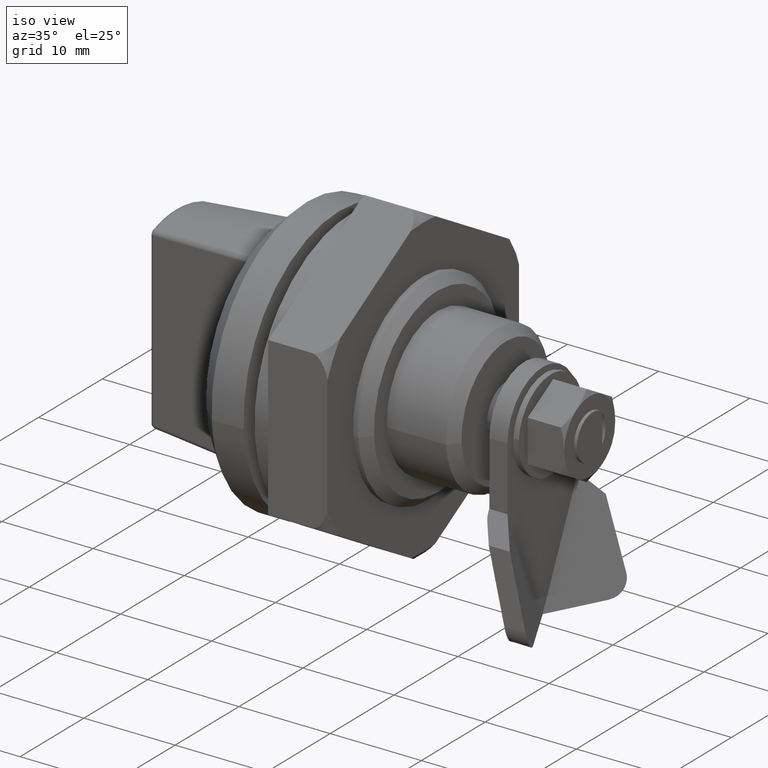
[diagram: clean part render]
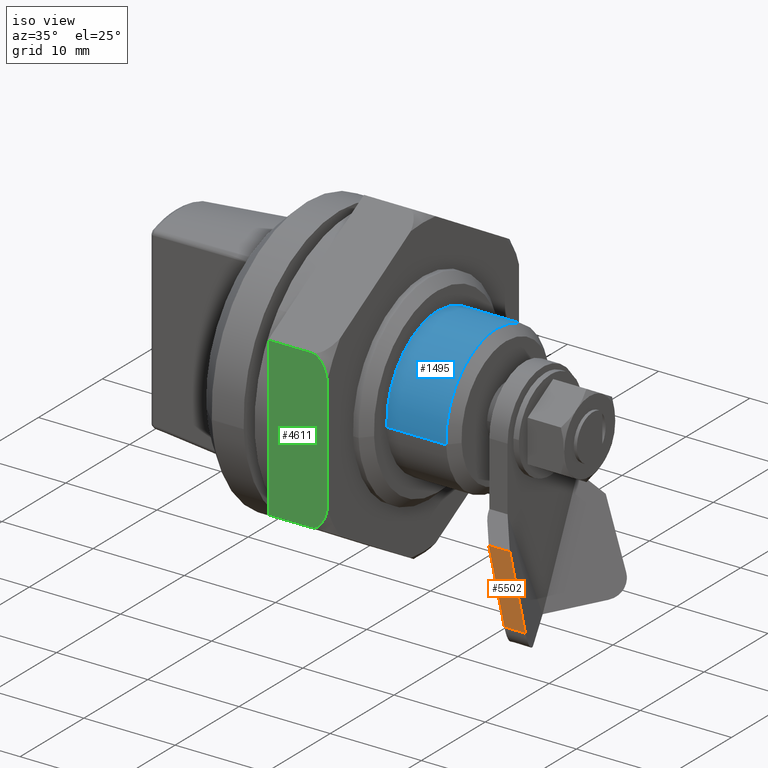
[diagram: same view with three faces highlighted in distinct colors, each labeled with its STEP entity id]
A machine part, iso view with three faces highlighted in distinct colors.
Their STEP definitions:

[orange] entity #5502 — the highlighted face is a freeform B-spline surface patch.
#5085=CARTESIAN_POINT('',(21.647984022657500,-7.512000000000028,-9.499999999999986));
#5086=VERTEX_POINT('',#5085);
#5108=CARTESIAN_POINT('',(23.626909158852850,-7.891992677597629,-16.897398436838429));
#5109=VERTEX_POINT('',#5108);
#5125=CARTESIAN_POINT('',(23.626909158852850,-7.891992677597629,-16.897398436838429));
#5126=CARTESIAN_POINT('',(21.647984022657500,-7.512000000000028,-9.499999999999986));
#5127=QUASI_UNIFORM_CURVE('',1,(#5125,#5126),.UNSPECIFIED.,.F.,.U.);
#5128=EDGE_CURVE('',#5109,#5086,#5127,.T.);
#5298=CARTESIAN_POINT('',(25.936310235611352,-7.891992677597630,-16.897398436838390));
#5299=VERTEX_POINT('',#5298);
#5317=CARTESIAN_POINT('',(23.626909158852850,-7.891992677597629,-16.897398436838429));
#5318=CARTESIAN_POINT('',(25.936310235611352,-7.891992677597630,-16.897398436838390));
#5319=QUASI_UNIFORM_CURVE('',1,(#5317,#5318),.UNSPECIFIED.,.F.,.U.);
#5320=EDGE_CURVE('',#5109,#5299,#5319,.T.);
#5373=CARTESIAN_POINT('',(23.957385099416101,-7.512000000000029,-9.499999999999986));
#5374=VERTEX_POINT('',#5373);
#5375=CARTESIAN_POINT('',(23.957385099416101,-7.512000000000029,-9.499999999999986));
#5376=CARTESIAN_POINT('',(21.647984022657500,-7.512000000000028,-9.499999999999986));
#5377=QUASI_UNIFORM_CURVE('',1,(#5375,#5376),.UNSPECIFIED.,.F.,.U.);
#5378=EDGE_CURVE('',#5374,#5086,#5377,.T.);
#5487=CARTESIAN_POINT('',(21.433782136632061,-7.910973311107125,-17.266898474420920));
#5488=CARTESIAN_POINT('',(21.433782136632061,-7.493019356298331,-9.130499764003810));
#5489=CARTESIAN_POINT('',(26.150512236658660,-7.910973311107126,-17.266898474420920));
#5490=CARTESIAN_POINT('',(26.150512236658660,-7.493019356298332,-9.130499764003810));
#5491=B_SPLINE_SURFACE_WITH_KNOTS('',1,1,((#5487,#5489),(#5488,#5490)),.UNSPECIFIED.,.F.,.F.,.U.,(2,2),(2,2),(0.0,8.147126455580368),(0.0,4.716730100026599),.UNSPECIFIED.);
#5492=ORIENTED_EDGE('',*,*,#5128,.F.);
#5493=ORIENTED_EDGE('',*,*,#5320,.T.);
#5494=CARTESIAN_POINT('',(25.936310235611352,-7.891992677597630,-16.897398436838390));
#5495=CARTESIAN_POINT('',(23.957385099416101,-7.512000000000029,-9.499999999999986));
#5496=QUASI_UNIFORM_CURVE('',1,(#5494,#5495),.UNSPECIFIED.,.F.,.U.);
#5497=EDGE_CURVE('',#5299,#5374,#5496,.T.);
#5498=ORIENTED_EDGE('',*,*,#5497,.T.);
#5499=ORIENTED_EDGE('',*,*,#5378,.T.);
#5500=EDGE_LOOP('',(#5492,#5493,#5498,#5499));
#5501=FACE_OUTER_BOUND('',#5500,.T.);
#5502=ADVANCED_FACE('',(#5501),#5491,.F.);

[blue] entity #1495 — the highlighted face is a freeform B-spline surface patch.
#1397=CARTESIAN_POINT('',(17.462500000000009,-7.985078387374934,-0.488388316278856));
#1398=CARTESIAN_POINT('',(17.462500000000006,-8.473466703653790,7.496690071096078));
#1399=CARTESIAN_POINT('',(17.462500000000009,-0.488388316278856,7.985078387374934));
#1400=CARTESIAN_POINT('',(17.462500000000006,7.496690071096078,8.473466703653790));
#1401=CARTESIAN_POINT('',(17.462500000000009,7.985078387374934,0.488388316278856));
#1402=CARTESIAN_POINT('',(10.633437499999999,-7.985078387374934,-0.488388316278856));
#1403=CARTESIAN_POINT('',(10.633437499999999,-8.473466703653790,7.496690071096078));
#1404=CARTESIAN_POINT('',(10.633437499999999,-0.488388316278856,7.985078387374934));
#1405=CARTESIAN_POINT('',(10.633437499999999,7.496690071096078,8.473466703653790));
#1406=CARTESIAN_POINT('',(10.633437499999999,7.985078387374934,0.488388316278856));
#1414=(BOUNDED_SURFACE()B_SPLINE_SURFACE(2,1,((#1397,#1402),(#1398,#1403),(#1399,#1404),(#1400,#1405),(#1401,#1406)),.UNSPECIFIED.,.F.,.F.,.U.)B_SPLINE_SURFACE_WITH_KNOTS((3,2,3),(2,2),(0.0,13.254833995939039,26.509667991878072),(0.0,6.829062500000006),.UNSPECIFIED.)GEOMETRIC_REPRESENTATION_ITEM()RATIONAL_B_SPLINE_SURFACE(((1.0,1.0),(0.707106781186548,0.707106781186548),(1.0,1.0),(0.707106781186548,0.707106781186548),(1.0,1.0)))REPRESENTATION_ITEM('')SURFACE());
#1415=CARTESIAN_POINT('',(17.300000000000001,0.0,8.0));
#1416=VERTEX_POINT('',#1415);
#1417=CARTESIAN_POINT('',(17.300000008078829,7.985078607682225,0.488384581894099));
#1418=VERTEX_POINT('',#1417);
#1419=CARTESIAN_POINT('',(17.300000000000001,0.0,8.0));
#1420=CARTESIAN_POINT('',(17.300000004039411,7.525655468297489,8.000001866699069));
#1421=CARTESIAN_POINT('',(17.300000008078836,7.985078607682225,0.488384581894099));
#1429=(BOUNDED_CURVE()B_SPLINE_CURVE(2,(#1419,#1420,#1421),.UNSPECIFIED.,.F.,.U.)B_SPLINE_CURVE_WITH_KNOTS((3,3),(0.0,0.239333123610723),.UNSPECIFIED.)CURVE()GEOMETRIC_REPRESENTATION_ITEM()RATIONAL_B_SPLINE_CURVE((1.0,0.719603804227909,0.976072387517405))REPRESENTATION_ITEM(''));
#1430=EDGE_CURVE('',#1416,#1418,#1429,.T.);
#1431=ORIENTED_EDGE('',*,*,#1430,.T.);
#1432=CARTESIAN_POINT('',(10.800000000000001,7.985078838620413,0.488380938368633));
#1433=VERTEX_POINT('',#1432);
#1434=CARTESIAN_POINT('',(17.300000008078829,7.985078607682225,0.488384581894099));
#1435=CARTESIAN_POINT('',(10.800000000000001,7.985078838620413,0.488380938368633));
#1436=QUASI_UNIFORM_CURVE('',1,(#1434,#1435),.UNSPECIFIED.,.F.,.U.);
#1437=EDGE_CURVE('',#1418,#1433,#1436,.T.);
#1438=ORIENTED_EDGE('',*,*,#1437,.T.);
#1439=CARTESIAN_POINT('',(10.800000000000001,0.0,8.0));
#1440=VERTEX_POINT('',#1439);
#1441=CARTESIAN_POINT('',(10.800000000000001,0.0,8.0));
#1442=CARTESIAN_POINT('',(10.800000000000001,7.525655501654670,7.999999999999896));
#1443=CARTESIAN_POINT('',(10.800000000000006,7.985078838620413,0.488380938368633));
#1451=(BOUNDED_CURVE()B_SPLINE_CURVE(2,(#1441,#1442,#1443),.UNSPECIFIED.,.F.,.U.)B_SPLINE_CURVE_WITH_KNOTS((3,3),(0.0,0.239333121668691),.UNSPECIFIED.)CURVE()GEOMETRIC_REPRESENTATION_ITEM()RATIONAL_B_SPLINE_CURVE((1.0,0.719603806503142,0.976072383355254))REPRESENTATION_ITEM(''));
#1452=EDGE_CURVE('',#1440,#1433,#1451,.T.);
#1453=ORIENTED_EDGE('',*,*,#1452,.F.);
#1454=CARTESIAN_POINT('',(10.800000000000001,-7.985078838620413,-0.488380938368633));
#1455=VERTEX_POINT('',#1454);
#1456=CARTESIAN_POINT('',(10.800000000000004,-7.985078838620413,-0.488380938368633));
#1457=CARTESIAN_POINT('',(10.800000000000001,-7.999999999996639,-0.244418407090186));
#1458=CARTESIAN_POINT('',(10.800000000000001,-7.999999999996692,1.998946E-013));
#1459=CARTESIAN_POINT('',(10.800000000000001,-7.999999999998396,8.000000000000096));
#1460=CARTESIAN_POINT('',(10.800000000000001,0.0,8.0));
#1468=(BOUNDED_CURVE()B_SPLINE_CURVE(2,(#1456,#1457,#1458,#1459,#1460),.UNSPECIFIED.,.F.,.U.)B_SPLINE_CURVE_WITH_KNOTS((3,2,3),(0.739333121668691,0.750000000000000,1.0),.UNSPECIFIED.)CURVE()GEOMETRIC_REPRESENTATION_ITEM()RATIONAL_B_SPLINE_CURVE((0.976072383355254,0.987502974683406,1.0,0.707106781186548,1.0))REPRESENTATION_ITEM(''));
#1469=EDGE_CURVE('',#1455,#1440,#1468,.T.);
#1470=ORIENTED_EDGE('',*,*,#1469,.F.);
#1471=CARTESIAN_POINT('',(17.300000008078829,-7.985078607682226,-0.488384581894099));
#1472=VERTEX_POINT('',#1471);
#1473=CARTESIAN_POINT('',(17.300000008078829,-7.985078607682226,-0.488384581894099));
#1474=CARTESIAN_POINT('',(10.800000000000001,-7.985078838620413,-0.488380938368633));
#1475=QUASI_UNIFORM_CURVE('',1,(#1473,#1474),.UNSPECIFIED.,.F.,.U.);
#1476=EDGE_CURVE('',#1472,#1455,#1475,.T.);
#1477=ORIENTED_EDGE('',*,*,#1476,.F.);
#1478=CARTESIAN_POINT('',(17.300000008078825,-7.985078607682226,-0.488384581894099));
#1479=CARTESIAN_POINT('',(17.300000007962733,-7.999999766959335,-0.244422041775751));
#1480=CARTESIAN_POINT('',(17.300000007839319,-7.999999770571203,-0.000003622715853));
#1481=CARTESIAN_POINT('',(17.300000003799902,-7.999999888790391,7.999998243983217));
#1482=CARTESIAN_POINT('',(17.300000000000001,0.0,8.0));
#1490=(BOUNDED_CURVE()B_SPLINE_CURVE(2,(#1478,#1479,#1480,#1481,#1482),.UNSPECIFIED.,.F.,.U.)B_SPLINE_CURVE_WITH_KNOTS((3,2,3),(0.739333123610723,0.750000000000000,1.0),.UNSPECIFIED.)CURVE()GEOMETRIC_REPRESENTATION_ITEM()RATIONAL_B_SPLINE_CURVE((0.976072387517405,0.987502976958638,1.0,0.707106781186548,1.0))REPRESENTATION_ITEM(''));
#1491=EDGE_CURVE('',#1472,#1416,#1490,.T.);
#1492=ORIENTED_EDGE('',*,*,#1491,.T.);
#1493=EDGE_LOOP('',(#1431,#1438,#1453,#1470,#1477,#1492));
#1494=FACE_OUTER_BOUND('',#1493,.T.);
#1495=ADVANCED_FACE('',(#1494),#1414,.T.);

[green] entity #4611 — the highlighted face is a freeform B-spline surface patch.
#3907=CARTESIAN_POINT('',(9.199999999999999,-15.0,6.431095073919311));
#3908=VERTEX_POINT('',#3907);
#3922=CARTESIAN_POINT('',(9.199999999999999,-15.0,-6.431095073919311));
#3923=VERTEX_POINT('',#3922);
#3924=CARTESIAN_POINT('',(9.199999999999999,-15.0,-6.431095073919311));
#3925=CARTESIAN_POINT('',(9.199999999999999,-15.0,6.431095073919311));
#3926=QUASI_UNIFORM_CURVE('',1,(#3924,#3925),.UNSPECIFIED.,.F.,.U.);
#3927=EDGE_CURVE('',#3923,#3908,#3926,.T.);
#4117=CARTESIAN_POINT('',(7.468242629463000,-15.0,-8.660999999999820));
#4118=VERTEX_POINT('',#4117);
#4124=CARTESIAN_POINT('',(2.700000000000035,-15.0,-8.660999999999820));
#4125=VERTEX_POINT('',#4124);
#4126=CARTESIAN_POINT('',(7.468242629463000,-15.0,-8.660999999999820));
#4127=CARTESIAN_POINT('',(2.700000000000035,-15.0,-8.660999999999820));
#4128=QUASI_UNIFORM_CURVE('',1,(#4126,#4127),.UNSPECIFIED.,.F.,.U.);
#4129=EDGE_CURVE('',#4118,#4125,#4128,.T.);
#4375=CARTESIAN_POINT('',(2.700000000000035,-15.0,8.660000000000000));
#4376=VERTEX_POINT('',#4375);
#4382=CARTESIAN_POINT('',(7.468242629463000,-15.0,8.660000000000000));
#4383=VERTEX_POINT('',#4382);
#4384=CARTESIAN_POINT('',(7.468242629463000,-15.0,8.660000000000000));
#4385=CARTESIAN_POINT('',(2.700000000000035,-15.0,8.660000000000000));
#4386=QUASI_UNIFORM_CURVE('',1,(#4384,#4385),.UNSPECIFIED.,.F.,.U.);
#4387=EDGE_CURVE('',#4383,#4376,#4386,.T.);
#4465=CARTESIAN_POINT('',(7.468242629463080,-15.0,-8.659237841749471));
#4466=VERTEX_POINT('',#4465);
#4467=CARTESIAN_POINT('',(9.199999999999999,-15.0,-6.431095073919311));
#4468=CARTESIAN_POINT('',(9.142026569019984,-15.0,-6.685745043623697));
#4469=CARTESIAN_POINT('',(9.070839630466073,-15.0,-6.936322689835604));
#4470=CARTESIAN_POINT('',(8.933640893490269,-15.0,-7.302814413221252));
#4471=CARTESIAN_POINT('',(8.882549240607906,-15.0,-7.423775414617201));
#4472=CARTESIAN_POINT('',(8.768932782492975,-14.999999999999989,-7.657574436413237));
#4473=CARTESIAN_POINT('',(8.706332607657480,-15.0,-7.770810848664722));
#4474=CARTESIAN_POINT('',(8.566087169940783,-15.0,-7.987768452589116));
#4475=CARTESIAN_POINT('',(8.488538847763639,-15.0,-8.091550954118061));
#4476=CARTESIAN_POINT('',(8.356158994964362,-15.0,-8.237069271457592));
#4477=CARTESIAN_POINT('',(8.309182435966392,-15.0,-8.283920311037301));
#4478=CARTESIAN_POINT('',(8.211024629625424,-15.0,-8.371113397878538));
#4479=CARTESIAN_POINT('',(8.159612408512894,-15.0,-8.411745743256130));
#4480=CARTESIAN_POINT('',(8.051241871706065,-15.0,-8.485964792091057));
#4481=CARTESIAN_POINT('',(7.993813759979943,-15.0,-8.519733933955969));
#4482=CARTESIAN_POINT('',(7.875881512607244,-15.0,-8.576879873363959));
#4483=CARTESIAN_POINT('',(7.815158433862671,-15.0,-8.600494556807931));
#4484=CARTESIAN_POINT('',(7.721124533757099,-15.0,-8.627593441155250));
#4485=CARTESIAN_POINT('',(7.689286895378426,-15.0,-8.635235097825952));
#4486=CARTESIAN_POINT('',(7.624550572235622,-15.0,-8.647524042193810));
#4487=CARTESIAN_POINT('',(7.591507880134528,-14.999999999999989,-8.652166991993044));
#4488=CARTESIAN_POINT('',(7.528490488808096,-15.0,-8.657876626014366));
#4489=CARTESIAN_POINT('',(7.498333356306489,-15.0,-8.659237495436564));
#4490=CARTESIAN_POINT('',(7.468242629463080,-15.0,-8.659237841749471));
#4491=B_SPLINE_CURVE_WITH_KNOTS('',3,(#4467,#4468,#4469,#4470,#4471,#4472,#4473,#4474,#4475,#4476,#4477,#4478,#4479,#4480,#4481,#4482,#4483,#4484,#4485,#4486,#4487,#4488,#4489,#4490),.UNSPECIFIED.,.F.,.U.,(4,2,2,2,2,2,2,2,2,2,2,4),(0.0,0.031250000000001,0.046875000000002,0.062500000000002,0.078125000000003,0.085937500000003,0.093750000000003,0.101562500000003,0.109375000000004,0.113281250000004,0.117187500000004,0.120787776723992),.UNSPECIFIED.);
#4492=EDGE_CURVE('',#3923,#4466,#4491,.T.);
#4527=CARTESIAN_POINT('',(7.468242629463080,-15.0,8.659237841749471));
#4528=VERTEX_POINT('',#4527);
#4529=CARTESIAN_POINT('',(7.468242629463080,-15.0,8.659237841749471));
#4530=CARTESIAN_POINT('',(7.493325388259478,-15.0,8.659238223446394));
#4531=CARTESIAN_POINT('',(7.518299320796952,-15.0,8.658294559079694));
#4532=CARTESIAN_POINT('',(7.608627134018750,-15.0,8.651519805038177));
#4533=CARTESIAN_POINT('',(7.673352836775162,-15.0,8.640240301492785));
#4534=CARTESIAN_POINT('',(7.769375475870972,-15.0,8.614075980367309));
#4535=CARTESIAN_POINT('',(7.801143151804281,-15.0,8.603808638875352));
#4536=CARTESIAN_POINT('',(7.863129900136790,-15.0,8.580732882113770));
#4537=CARTESIAN_POINT('',(7.923886410210399,-15.0,8.555036189770020));
#4538=CARTESIAN_POINT('',(7.982365995913002,-15.0,8.524488671126084));
#4539=CARTESIAN_POINT('',(8.039780268692105,-15.0,8.491671578660043));
#4540=CARTESIAN_POINT('',(8.068048720597032,-15.0,8.474062665003412));
#4541=CARTESIAN_POINT('',(8.205635673214154,-15.0,8.381508568871432));
#4542=CARTESIAN_POINT('',(8.303281636481042,-15.0,8.294007979802801));
#4543=CARTESIAN_POINT('',(8.436899441598856,-15.0,8.148836669267578));
#4544=CARTESIAN_POINT('',(8.479418398631564,-15.0,8.097829993422668));
#4545=CARTESIAN_POINT('',(8.559600734675424,-15.0,7.993014229698201));
#4546=CARTESIAN_POINT('',(8.597276876159866,-15.0,7.939246880140066));
#4547=CARTESIAN_POINT('',(8.704254629577431,-15.0,7.774538785327469));
#4548=CARTESIAN_POINT('',(8.767563867378266,-15.0,7.660224810450826));
#4549=CARTESIAN_POINT('',(8.853486416497329,-15.0,7.483664311687342));
#4550=CARTESIAN_POINT('',(8.880601892586292,-15.0,7.423952148178089));
#4551=CARTESIAN_POINT('',(8.932115201310369,-15.0,7.302998004229152));
#4552=CARTESIAN_POINT('',(8.956545852380504,-15.0,7.241651883013375));
#4553=CARTESIAN_POINT('',(9.071622344601106,-15.0,6.934147431016926));
#4554=CARTESIAN_POINT('',(9.142438841186117,-15.0,6.683934455532263));
#4555=CARTESIAN_POINT('',(9.200000000000076,-15.0,6.431095073919320));
#4556=B_SPLINE_CURVE_WITH_KNOTS('',3,(#4529,#4530,#4531,#4532,#4533,#4534,#4535,#4536,#4537,#4538,#4539,#4540,#4541,#4542,#4543,#4544,#4545,#4546,#4547,#4548,#4549,#4550,#4551,#4552,#4553,#4554,#4555),.UNSPECIFIED.,.F.,.U.,(4,2,2,2,1,2,2,2,2,2,2,2,2,4),(0.879844603749379,0.882812499999997,0.890624999999997,0.894531249999997,0.898437499999997,0.902343749999997,0.906249999999998,0.921874999999998,0.929687499999998,0.937499999999998,0.953124999999999,0.960937499999999,0.968749999999999,1.0),.UNSPECIFIED.);
#4557=EDGE_CURVE('',#4528,#3908,#4556,.T.);
#4577=CARTESIAN_POINT('',(2.375325012598261,-15.0,9.525183916428532));
#4578=CARTESIAN_POINT('',(2.375325012598261,-15.0,-9.526184381013774));
#4579=CARTESIAN_POINT('',(9.524675161745323,-15.0,9.525183916428532));
#4580=CARTESIAN_POINT('',(9.524675161745323,-15.0,-9.526184381013774));
#4581=B_SPLINE_SURFACE_WITH_KNOTS('',1,1,((#4577,#4579),(#4578,#4580)),.UNSPECIFIED.,.F.,.F.,.U.,(2,2),(2,2),(0.0,19.051368297442309),(0.0,7.149350149147062),.UNSPECIFIED.);
#4582=ORIENTED_EDGE('',*,*,#4557,.F.);
#4583=CARTESIAN_POINT('',(7.468242629463000,-15.0,8.660000000000000));
#4584=CARTESIAN_POINT('',(7.468242629463080,-15.0,8.659237841749471));
#4585=QUASI_UNIFORM_CURVE('',1,(#4583,#4584),.UNSPECIFIED.,.F.,.U.);
#4586=EDGE_CURVE('',#4383,#4528,#4585,.T.);
#4587=ORIENTED_EDGE('',*,*,#4586,.F.);
#4588=ORIENTED_EDGE('',*,*,#4387,.T.);
#4589=CARTESIAN_POINT('',(2.700000000000000,-15.0,0.0));
#4590=VERTEX_POINT('',#4589);
#4591=CARTESIAN_POINT('',(2.700000000000000,-15.0,0.0));
#4592=CARTESIAN_POINT('',(2.700000000000035,-15.0,8.660000000000000));
#4593=QUASI_UNIFORM_CURVE('',1,(#4591,#4592),.UNSPECIFIED.,.F.,.U.);
#4594=EDGE_CURVE('',#4590,#4376,#4593,.T.);
#4595=ORIENTED_EDGE('',*,*,#4594,.F.);
#4596=CARTESIAN_POINT('',(2.700000000000035,-15.0,-8.660999999999820));
#4597=CARTESIAN_POINT('',(2.700000000000000,-15.0,0.0));
#4598=QUASI_UNIFORM_CURVE('',1,(#4596,#4597),.UNSPECIFIED.,.F.,.U.);
#4599=EDGE_CURVE('',#4125,#4590,#4598,.T.);
#4600=ORIENTED_EDGE('',*,*,#4599,.F.);
#4601=ORIENTED_EDGE('',*,*,#4129,.F.);
#4602=CARTESIAN_POINT('',(7.468242629463080,-15.0,-8.659237841749471));
#4603=CARTESIAN_POINT('',(7.468242629463000,-15.0,-8.660999999999820));
#4604=QUASI_UNIFORM_CURVE('',1,(#4602,#4603),.UNSPECIFIED.,.F.,.U.);
#4605=EDGE_CURVE('',#4466,#4118,#4604,.T.);
#4606=ORIENTED_EDGE('',*,*,#4605,.F.);
#4607=ORIENTED_EDGE('',*,*,#4492,.F.);
#4608=ORIENTED_EDGE('',*,*,#3927,.T.);
#4609=EDGE_LOOP('',(#4582,#4587,#4588,#4595,#4600,#4601,#4606,#4607,#4608));
#4610=FACE_OUTER_BOUND('',#4609,.T.);
#4611=ADVANCED_FACE('',(#4610),#4581,.T.);